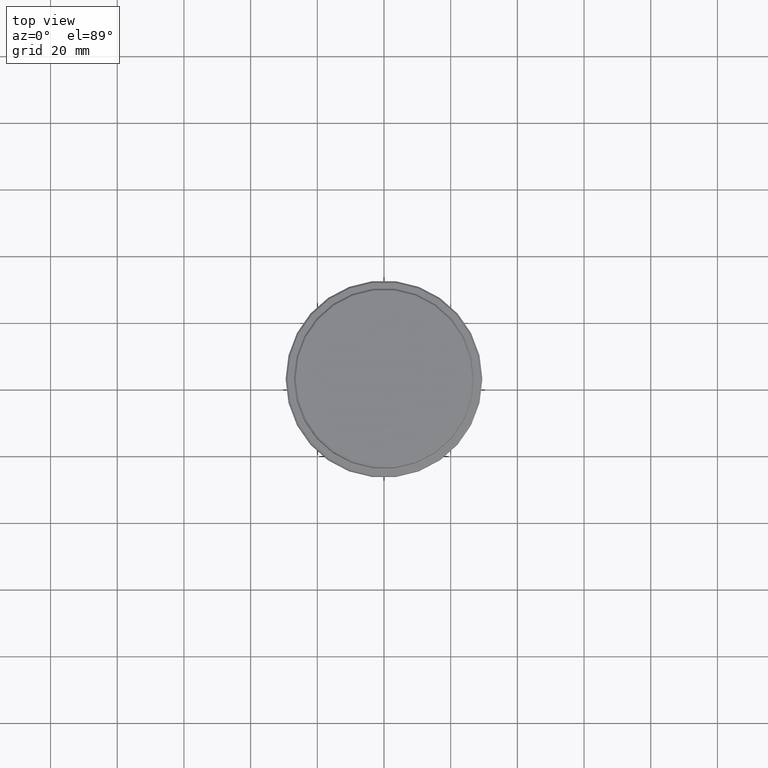
[diagram: clean part render]
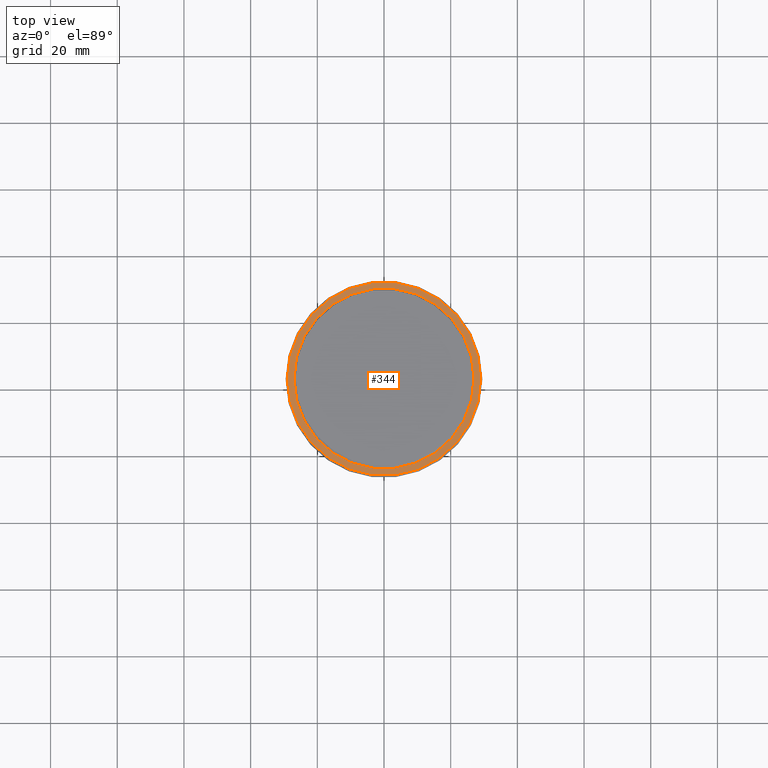
[diagram: same view with one face highlighted and labeled with its STEP entity id]
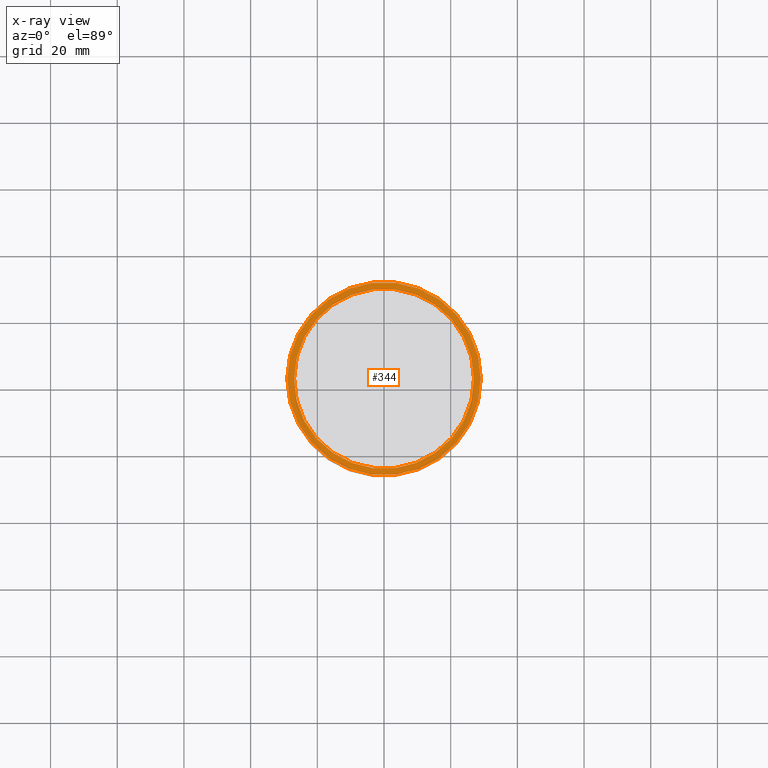
[diagram: x-ray of the same camera — body ghosted, the highlighted face saturated]
A machine part, top view. The second image highlights one B-rep face of the part: STEP entity #344.
The next image is the same camera in x-ray: the body ghosted, the highlighted face saturated — about 0% of this face is hidden behind the body in this view.
In plain terms, the highlighted planar face has unit normal (0, -0, 1).
Its self-contained STEP definition (entity closure, byte-faithful):
#138 = FACE_BOUND ( 'NONE', #361, .T. ) ;
#155 = CARTESIAN_POINT ( 'NONE',  ( 0.000000000000000000, 26.49999999999999645, -12.00000000000000355 ) ) ;
#167 = ORIENTED_EDGE ( 'NONE', *, *, #728, .T. ) ;
#222 = CIRCLE ( 'NONE', #643, 28.99999999999999645 ) ;
#228 = CARTESIAN_POINT ( 'NONE',  ( 28.99999999999999645, 3.582091887506007817E-15, -12.00000000000000355 ) ) ;
#254 = CARTESIAN_POINT ( 'NONE',  ( 0.000000000000000000, 0.000000000000000000, -12.00000000000000355 ) ) ;
#262 = ORIENTED_EDGE ( 'NONE', *, *, #1092, .T. ) ;
#267 = CARTESIAN_POINT ( 'NONE',  ( 26.99999999999999645, 0.000000000000000000, -12.00000000000000355 ) ) ;
#281 = AXIS2_PLACEMENT_3D ( 'NONE', #155, #474, #1351 ) ;
#296 = DIRECTION ( 'NONE',  ( 0.000000000000000000, 0.000000000000000000, -1.000000000000000000 ) ) ;
#323 = CIRCLE ( 'NONE', #1056, 28.99999999999999645 ) ;
#337 = EDGE_CURVE ( 'NONE', #1073, #611, #323, .T. ) ;
#344 = ADVANCED_FACE ( 'NONE', ( #480, #138 ), #1137, .T. ) ;
#357 = CARTESIAN_POINT ( 'NONE',  ( -28.99999999999999645, 0.000000000000000000, -12.00000000000000355 ) ) ;
#361 = EDGE_LOOP ( 'NONE', ( #167, #835 ) ) ;
#389 = DIRECTION ( 'NONE',  ( 1.000000000000000000, 0.000000000000000000, 0.000000000000000000 ) ) ;
#422 = CIRCLE ( 'NONE', #1312, 26.99999999999999645 ) ;
#474 = DIRECTION ( 'NONE',  ( 0.000000000000000000, -0.000000000000000000, 1.000000000000000000 ) ) ;
#480 = FACE_OUTER_BOUND ( 'NONE', #1260, .T. ) ;
#611 = VERTEX_POINT ( 'NONE', #228 ) ;
#643 = AXIS2_PLACEMENT_3D ( 'NONE', #767, #1205, #1042 ) ;
#657 = VERTEX_POINT ( 'NONE', #1236 ) ;
#671 = DIRECTION ( 'NONE',  ( 1.000000000000000000, 0.000000000000000000, 0.000000000000000000 ) ) ;
#690 = CARTESIAN_POINT ( 'NONE',  ( 0.000000000000000000, 0.000000000000000000, -12.00000000000000355 ) ) ;
#728 = EDGE_CURVE ( 'NONE', #1115, #657, #422, .T. ) ;
#757 = AXIS2_PLACEMENT_3D ( 'NONE', #1396, #296, #1055 ) ;
#767 = CARTESIAN_POINT ( 'NONE',  ( 0.000000000000000000, 0.000000000000000000, -12.00000000000000355 ) ) ;
#835 = ORIENTED_EDGE ( 'NONE', *, *, #1327, .T. ) ;
#894 = ORIENTED_EDGE ( 'NONE', *, *, #337, .T. ) ;
#1042 = DIRECTION ( 'NONE',  ( 1.000000000000000000, 0.000000000000000000, 0.000000000000000000 ) ) ;
#1055 = DIRECTION ( 'NONE',  ( 1.000000000000000000, 0.000000000000000000, 0.000000000000000000 ) ) ;
#1056 = AXIS2_PLACEMENT_3D ( 'NONE', #254, #1116, #671 ) ;
#1073 = VERTEX_POINT ( 'NONE', #357 ) ;
#1092 = EDGE_CURVE ( 'NONE', #611, #1073, #222, .T. ) ;
#1115 = VERTEX_POINT ( 'NONE', #267 ) ;
#1116 = DIRECTION ( 'NONE',  ( -0.000000000000000000, -0.000000000000000000, 1.000000000000000000 ) ) ;
#1137 = PLANE ( 'NONE',  #281 ) ;
#1205 = DIRECTION ( 'NONE',  ( -0.000000000000000000, -0.000000000000000000, 1.000000000000000000 ) ) ;
#1236 = CARTESIAN_POINT ( 'NONE',  ( -26.99999999999999645, 3.306546357697853339E-15, -12.00000000000000355 ) ) ;
#1260 = EDGE_LOOP ( 'NONE', ( #894, #262 ) ) ;
#1312 = AXIS2_PLACEMENT_3D ( 'NONE', #690, #1377, #389 ) ;
#1327 = EDGE_CURVE ( 'NONE', #657, #1115, #1338, .T. ) ;
#1338 = CIRCLE ( 'NONE', #757, 26.99999999999999645 ) ;
#1351 = DIRECTION ( 'NONE',  ( 1.000000000000000000, 0.000000000000000000, 0.000000000000000000 ) ) ;
#1377 = DIRECTION ( 'NONE',  ( 0.000000000000000000, 0.000000000000000000, -1.000000000000000000 ) ) ;
#1396 = CARTESIAN_POINT ( 'NONE',  ( 0.000000000000000000, 0.000000000000000000, -12.00000000000000355 ) ) ;